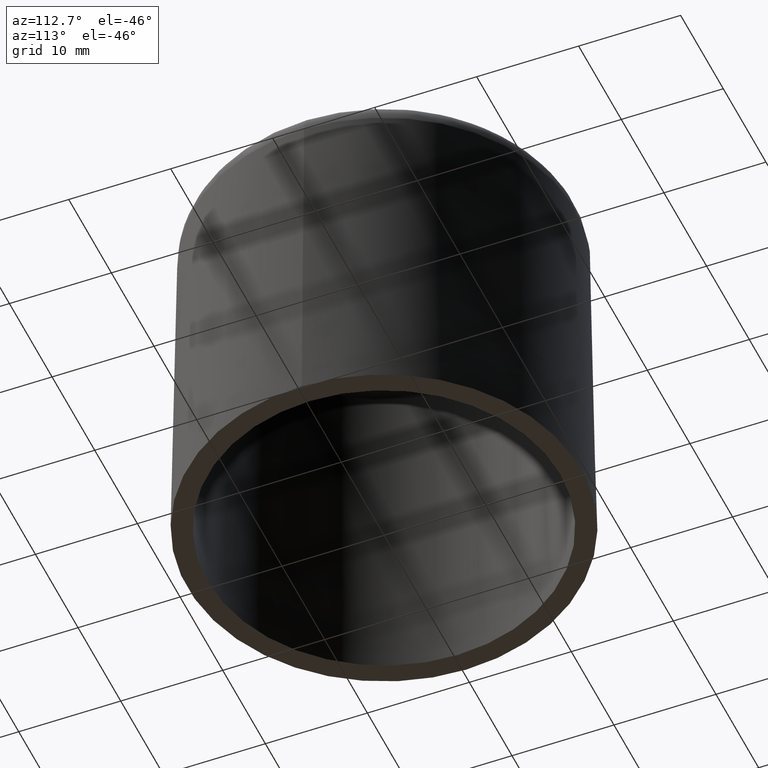
[diagram: clean part render]
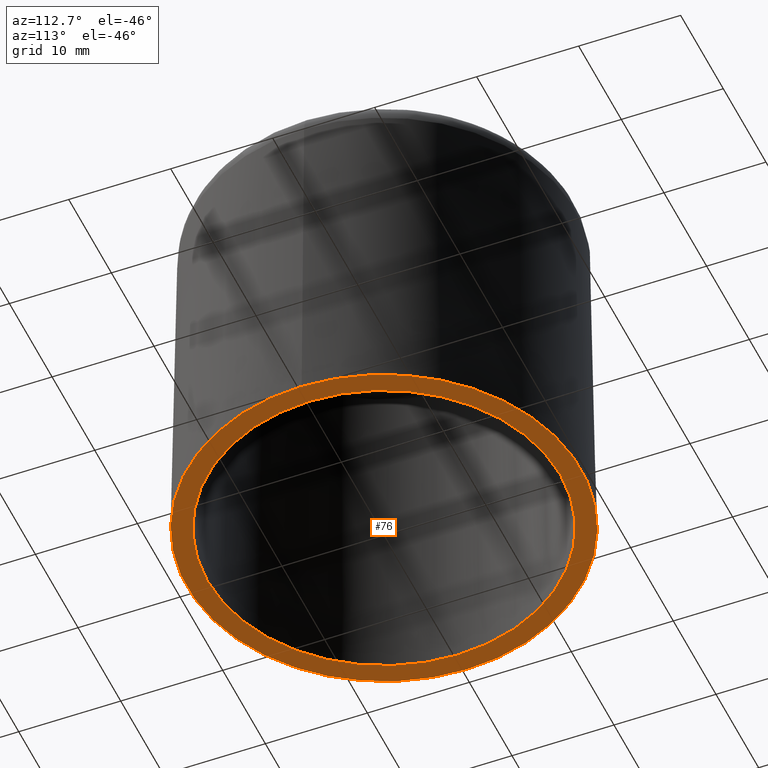
[diagram: same view with one face highlighted and labeled with its STEP entity id]
A machine part, auxiliary view. The second image highlights one B-rep face of the part: STEP entity #76.
In plain terms, the highlighted planar face has unit normal (-0, 0, 1).
Its self-contained STEP definition (entity closure, byte-faithful):
#76 = ADVANCED_FACE( '', ( #158, #159 ), #160, .F. );
#158 = FACE_OUTER_BOUND( '', #319, .T. );
#159 = FACE_BOUND( '', #320, .T. );
#160 = PLANE( '', #321 );
#319 = EDGE_LOOP( '', ( #530 ) );
#320 = EDGE_LOOP( '', ( #531 ) );
#321 = AXIS2_PLACEMENT_3D( '', #532, #533, #534 );
#530 = ORIENTED_EDGE( '', *, *, #1144, .F. );
#531 = ORIENTED_EDGE( '', *, *, #1145, .T. );
#532 = CARTESIAN_POINT( '', ( -2.12435339080604E-031, 17.3054636362438, 3.46944695195361E-015 ) );
#533 = DIRECTION( '', ( -6.12303176911189E-017, 0.000000000000000, 1.00000000000000 ) );
#534 = DIRECTION( '', ( 1.00000000000000, 0.000000000000000, 6.12303176911189E-017 ) );
#1144 = EDGE_CURVE( '', #1356, #1356, #1357, .T. );
#1145 = EDGE_CURVE( '', #1358, #1358, #1359, .T. );
#1356 = VERTEX_POINT( '', #1756 );
#1357 = CIRCLE( '', #1757, 19.3057682923316 );
#1358 = VERTEX_POINT( '', #1758 );
#1359 = CIRCLE( '', #1759, 17.3054636362438 );
#1756 = CARTESIAN_POINT( '', ( 19.3057682923316, 0.000000000000000, 2.89376739414395E-014 ) );
#1757 = AXIS2_PLACEMENT_3D( '', #2182, #2183, #2184 );
#1758 = CARTESIAN_POINT( '', ( 17.3054636362438, 0.000000000000000, -1.97570626754824E-014 ) );
#1759 = AXIS2_PLACEMENT_3D( '', #2185, #2186, #2187 );
#2182 = CARTESIAN_POINT( '', ( -1.69948271264483E-030, 0.000000000000000, 2.77555756156289E-014 ) );
#2183 = DIRECTION( '', ( -6.12303176911189E-017, 0.000000000000000, 1.00000000000000 ) );
#2184 = DIRECTION( '', ( 1.00000000000000, 0.000000000000000, 6.12303176911189E-017 ) );
#2185 = CARTESIAN_POINT( '', ( 1.27461203448362E-030, 0.000000000000000, -2.08166817117217E-014 ) );
#2186 = DIRECTION( '', ( -6.12303176911189E-017, 0.000000000000000, 1.00000000000000 ) );
#2187 = DIRECTION( '', ( 1.00000000000000, 0.000000000000000, 6.12303176911189E-017 ) );